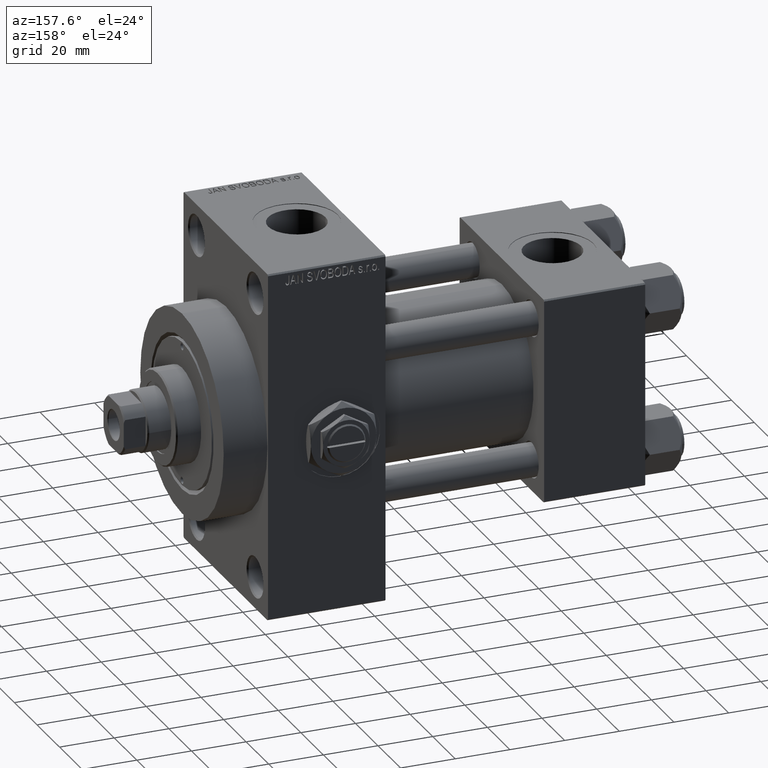
[diagram: clean part render]
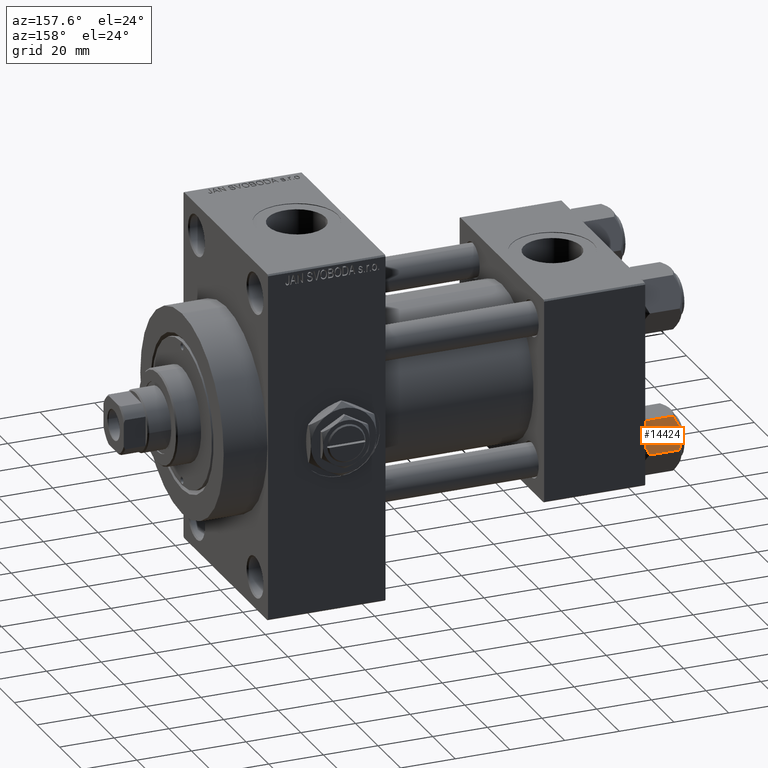
[diagram: same view with one face highlighted and labeled with its STEP entity id]
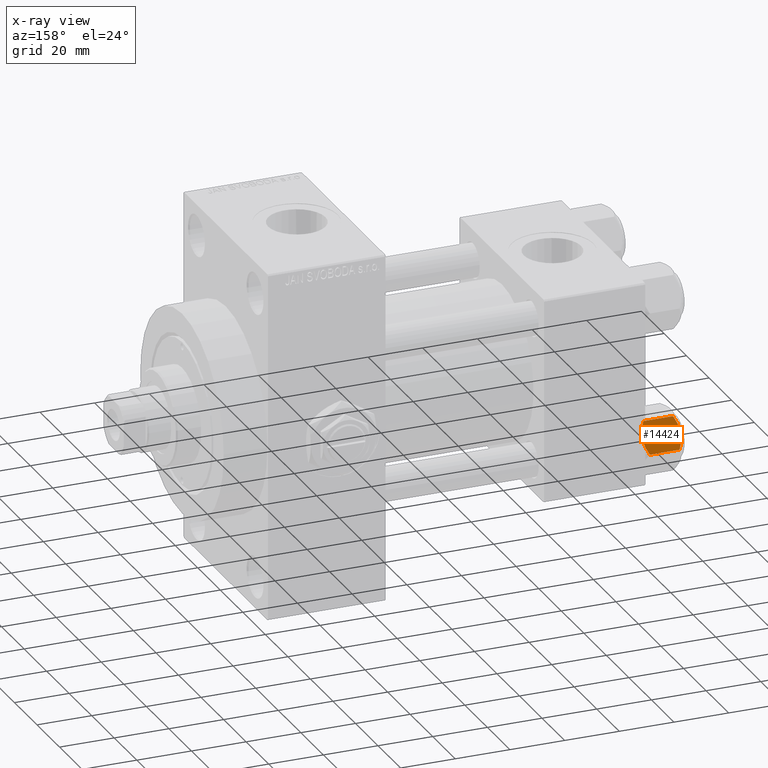
[diagram: x-ray of the same camera — body ghosted, the highlighted face saturated]
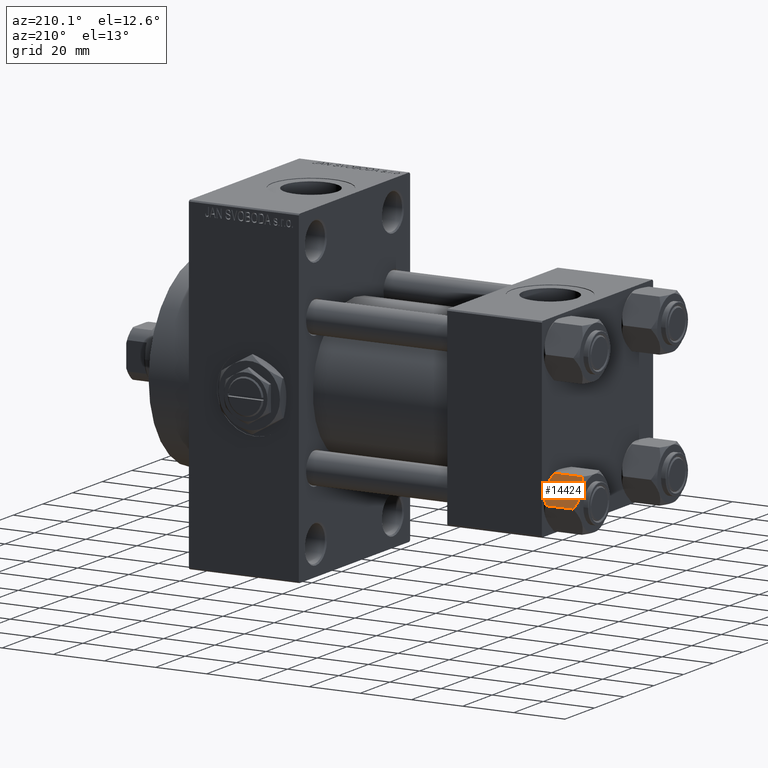
[diagram: same view with one face highlighted and labeled with its STEP entity id]
A machine part, auxiliary view. The second image highlights one B-rep face of the part: STEP entity #14424.
The next image is the same camera in x-ray: the body ghosted, the highlighted face saturated — about 0% of this face is hidden behind the body in this view.
A second angle (auxiliary view) of the same face is appended — the face is thin or edge-on in the first view.
In plain terms, the highlighted planar face has unit normal (0, -0.866, -0.5).
Its self-contained STEP definition (entity closure, byte-faithful):
#163 = B_SPLINE_CURVE_WITH_KNOTS ( 'NONE', 3,
 ( #27529, #16352, #44173, #21540, #9620, #28502 ),
 .UNSPECIFIED., .F., .F.,
 ( 4, 2, 4 ),
 ( 0.006022845781655582903, 0.009013049135303629819, 0.01200325248895167674 ),
 .UNSPECIFIED. ) ;
#316 = VERTEX_POINT ( 'NONE', #46603 ) ;
#1222 = EDGE_CURVE ( 'NONE', #316, #20644, #15343, .T. ) ;
#4406 = ORIENTED_EDGE ( 'NONE', *, *, #23955, .F. ) ;
#4482 = DIRECTION ( 'NONE',  ( 0.5000000000000001110, 0.8660254037844384856, 0.000000000000000000 ) ) ;
#6192 = B_SPLINE_CURVE_WITH_KNOTS ( 'NONE', 3,
 ( #25964, #29940, #14303, #30172, #7086, #41870, #26692, #22228 ),
 .UNSPECIFIED., .F., .F.,
 ( 4, 2, 2, 4 ),
 ( 2.544312114905218436E-07, 0.003011550106433537322, 0.004517197944044560112, 0.006022845781655582903 ),
 .UNSPECIFIED. ) ;
#6291 = CARTESIAN_POINT ( 'NONE',  ( -8.715000000000003411, 5.031607595987592774, 0.000000000000000000 ) ) ;
#7086 = CARTESIAN_POINT ( 'NONE',  ( -9.729165168613654657, 3.275021996682086378, -13.80960203119266261 ) ) ;
#7328 = CARTESIAN_POINT ( 'NONE',  ( -8.715000000000003411, 5.031607595987592774, 0.000000000000000000 ) ) ;
#7815 = CARTESIAN_POINT ( 'NONE',  ( -10.69662495661650148, 1.599332489581337668, -0.7114554706434472742 ) ) ;
#8455 = PLANE ( 'NONE',  #47173 ) ;
#9620 = CARTESIAN_POINT ( 'NONE',  ( -6.265018354709773973, 9.275100283241455301, -12.89823354668504862 ) ) ;
#10479 = DIRECTION ( 'NONE',  ( -0.000000000000000000, -0.000000000000000000, 1.000000000000000000 ) ) ;
#10716 = VECTOR ( 'NONE', #34200, 1000.000000000000000 ) ;
#10867 = CARTESIAN_POINT ( 'NONE',  ( -11.61999999999999922, 6.270720075510426383E-15, -12.44321519197518988 ) ) ;
#11931 = FACE_OUTER_BOUND ( 'NONE', #36835, .T. ) ;
#12324 = CARTESIAN_POINT ( 'NONE',  ( -11.61999999999999922, 6.270720075409452187E-15, -1.556784808024810562 ) ) ;
#12581 = CARTESIAN_POINT ( 'NONE',  ( -8.202333004087897450, 5.919572880271055659, -0.03994118060690620559 ) ) ;
#13200 = ORIENTED_EDGE ( 'NONE', *, *, #1222, .F. ) ;
#14303 = CARTESIAN_POINT ( 'NONE',  ( -10.69859855102500923, 1.595914123792268713, -13.28585617404753805 ) ) ;
#14424 = ADVANCED_FACE ( 'NONE', ( #11931 ), #8455, .F. ) ;
#15098 = EDGE_CURVE ( 'NONE', #28970, #316, #24887, .T. ) ;
#15343 = B_SPLINE_CURVE_WITH_KNOTS ( 'NONE', 3,
 ( #40155, #20518, #43892, #35691, #43636, #12581, #17045, #31704 ),
 .UNSPECIFIED., .F., .F.,
 ( 4, 2, 2, 4 ),
 ( 2.544312114902182352E-07, 0.003011550106433540791, 0.004517197944044565316, 0.006022845781655589842 ),
 .UNSPECIFIED. ) ;
#15563 = EDGE_CURVE ( 'NONE', #27823, #28970, #163, .T. ) ;
#15763 = EDGE_CURVE ( 'NONE', #34038, #16786, #33955, .T. ) ;
#16352 = CARTESIAN_POINT ( 'NONE',  ( -8.209704053696567527, 5.906805847843728863, -14.00000000000000355 ) ) ;
#16786 = VERTEX_POINT ( 'NONE', #12324 ) ;
#17045 = CARTESIAN_POINT ( 'NONE',  ( -8.460569896449618099, 5.472293462311865753, 3.939644352451667145E-15 ) ) ;
#18547 = CARTESIAN_POINT ( 'NONE',  ( -5.809999999999997833, 10.06321519197518022, -12.44321519197518633 ) ) ;
#18941 = ORIENTED_EDGE ( 'NONE', *, *, #15763, .T. ) ;
#19036 = CARTESIAN_POINT ( 'NONE',  ( -11.61999999999999922, 6.288644352490894150E-15, -14.00000000000000000 ) ) ;
#20518 = CARTESIAN_POINT ( 'NONE',  ( -6.265545725125282850, 9.274186850887385702, -1.101239082899533539 ) ) ;
#20644 = VERTEX_POINT ( 'NONE', #6291 ) ;
#21540 = CARTESIAN_POINT ( 'NONE',  ( -6.733375043383497349, 8.463882702393844326, -13.28854452935655317 ) ) ;
#21988 = EDGE_CURVE ( 'NONE', #20644, #16786, #45445, .T. ) ;
#22228 = CARTESIAN_POINT ( 'NONE',  ( -8.715000000000003411, 5.031607595987592774, -14.00000000000000000 ) ) ;
#22718 = CARTESIAN_POINT ( 'NONE',  ( -9.220295946303428636, 4.156409344131455796, 3.796401669593772542E-15 ) ) ;
#23955 = EDGE_CURVE ( 'NONE', #34038, #27823, #6192, .T. ) ;
#24887 = LINE ( 'NONE', #40550, #29760 ) ;
#25298 = ORIENTED_EDGE ( 'NONE', *, *, #15098, .F. ) ;
#25964 = CARTESIAN_POINT ( 'NONE',  ( -11.61999999999999922, 6.270720075510426383E-15, -12.44321519197518988 ) ) ;
#26692 = CARTESIAN_POINT ( 'NONE',  ( -8.969430103550379840, 4.590921729663318018, -14.00000000000000355 ) ) ;
#27529 = CARTESIAN_POINT ( 'NONE',  ( -8.715000000000003411, 5.031607595987592774, -14.00000000000000000 ) ) ;
#27823 = VERTEX_POINT ( 'NONE', #44917 ) ;
#28502 = CARTESIAN_POINT ( 'NONE',  ( -5.809999999999997833, 10.06321519197518022, -12.44321519197518633 ) ) ;
#28970 = VERTEX_POINT ( 'NONE', #18547 ) ;
#29760 = VECTOR ( 'NONE', #10479, 1000.000000000000000 ) ;
#29940 = CARTESIAN_POINT ( 'NONE',  ( -11.16445427487471420, 0.7890283410878028425, -12.89876091710047490 ) ) ;
#30172 = CARTESIAN_POINT ( 'NONE',  ( -9.974696630283190757, 2.849749030213796885, -13.69973261901326111 ) ) ;
#31704 = CARTESIAN_POINT ( 'NONE',  ( -8.715000000000003411, 5.031607595987592774, 0.000000000000000000 ) ) ;
#33955 = LINE ( 'NONE', #19036, #10716 ) ;
#34038 = VERTEX_POINT ( 'NONE', #10867 ) ;
#34200 = DIRECTION ( 'NONE',  ( -0.000000000000000000, -0.000000000000000000, 1.000000000000000000 ) ) ;
#35691 = CARTESIAN_POINT ( 'NONE',  ( -7.455303369716805406, 7.213466161761384221, -0.3002673809867362764 ) ) ;
#36835 = EDGE_LOOP ( 'NONE', ( #4406, #18941, #38760, #13200, #25298, #41908 ) ) ;
#37643 = CARTESIAN_POINT ( 'NONE',  ( -9.716999946243694453, 3.296092779912229265, -0.1545239700039824915 ) ) ;
#38128 = CARTESIAN_POINT ( 'NONE',  ( -11.16498164529022219, 0.7881149087337359083, -1.101766453314949379 ) ) ;
#38760 = ORIENTED_EDGE ( 'NONE', *, *, #21988, .F. ) ;
#40155 = CARTESIAN_POINT ( 'NONE',  ( -5.809999999999997833, 10.06321519197518022, -1.556784808024814115 ) ) ;
#40550 = CARTESIAN_POINT ( 'NONE',  ( -5.809999999999997833, 10.06321519197518022, -14.00000000000000000 ) ) ;
#41870 = CARTESIAN_POINT ( 'NONE',  ( -9.227666995912100489, 4.143642311704128112, -13.96005881939309212 ) ) ;
#41908 = ORIENTED_EDGE ( 'NONE', *, *, #15563, .F. ) ;
#42261 = CARTESIAN_POINT ( 'NONE',  ( -11.61999999999999922, 6.288644352490894150E-15, -14.00000000000000000 ) ) ;
#43636 = CARTESIAN_POINT ( 'NONE',  ( -7.700834831386344170, 6.788193195293096949, -0.1903979688073401122 ) ) ;
#43892 = CARTESIAN_POINT ( 'NONE',  ( -6.731401448974986934, 8.467301068182916168, -0.7141438259524646170 ) ) ;
#44173 = CARTESIAN_POINT ( 'NONE',  ( -7.713000053756306151, 6.767122412062953174, -13.84547602999602134 ) ) ;
#44917 = CARTESIAN_POINT ( 'NONE',  ( -8.715000000000003411, 5.031607595987592774, -14.00000000000000000 ) ) ;
#45445 = B_SPLINE_CURVE_WITH_KNOTS ( 'NONE', 3,
 ( #7328, #22718, #37643, #7815, #38128, #45833 ),
 .UNSPECIFIED., .F., .F.,
 ( 4, 2, 4 ),
 ( 0.006022845781655589842, 0.009013049135303633289, 0.01200325248895167674 ),
 .UNSPECIFIED. ) ;
#45833 = CARTESIAN_POINT ( 'NONE',  ( -11.61999999999999922, 6.270720075409452187E-15, -1.556784808024810562 ) ) ;
#46603 = CARTESIAN_POINT ( 'NONE',  ( -5.809999999999997833, 10.06321519197518022, -1.556784808024814115 ) ) ;
#46957 = DIRECTION ( 'NONE',  ( 0.8660254037844385966, -0.5000000000000002220, 0.000000000000000000 ) ) ;
#47173 = AXIS2_PLACEMENT_3D ( 'NONE', #42261, #46957, #4482 ) ;